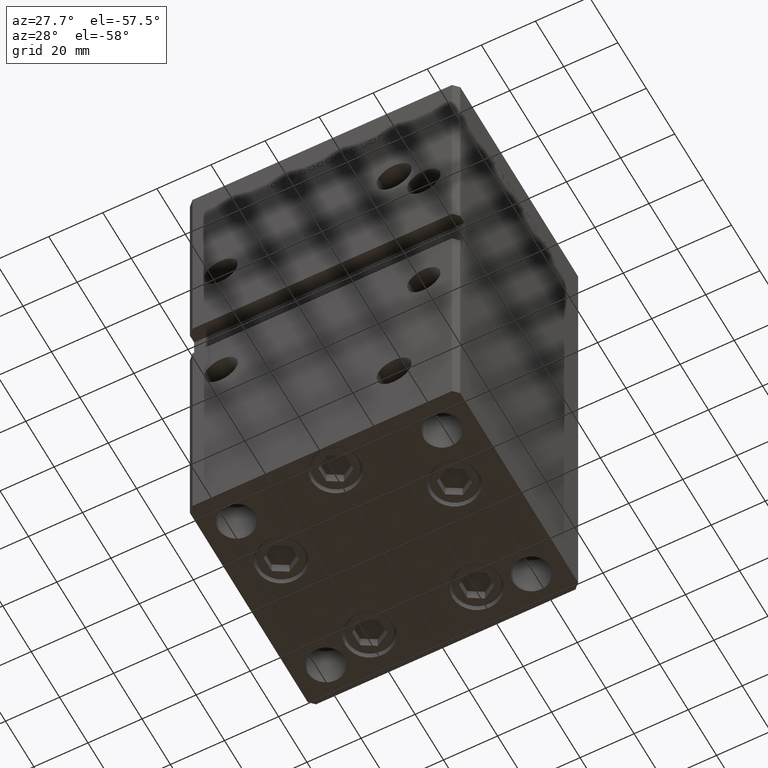
[diagram: clean part render]
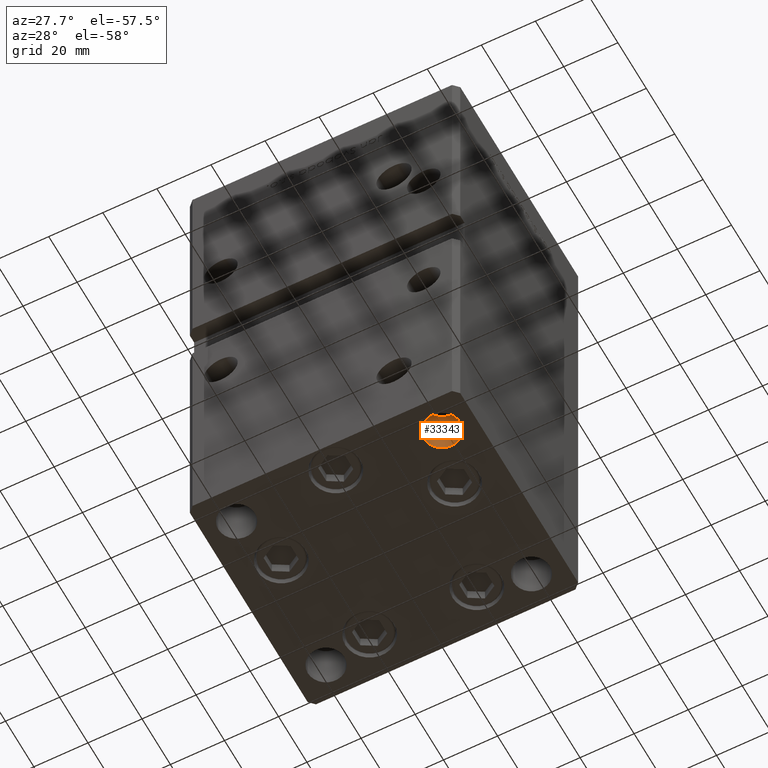
[diagram: same view with one face highlighted and labeled with its STEP entity id]
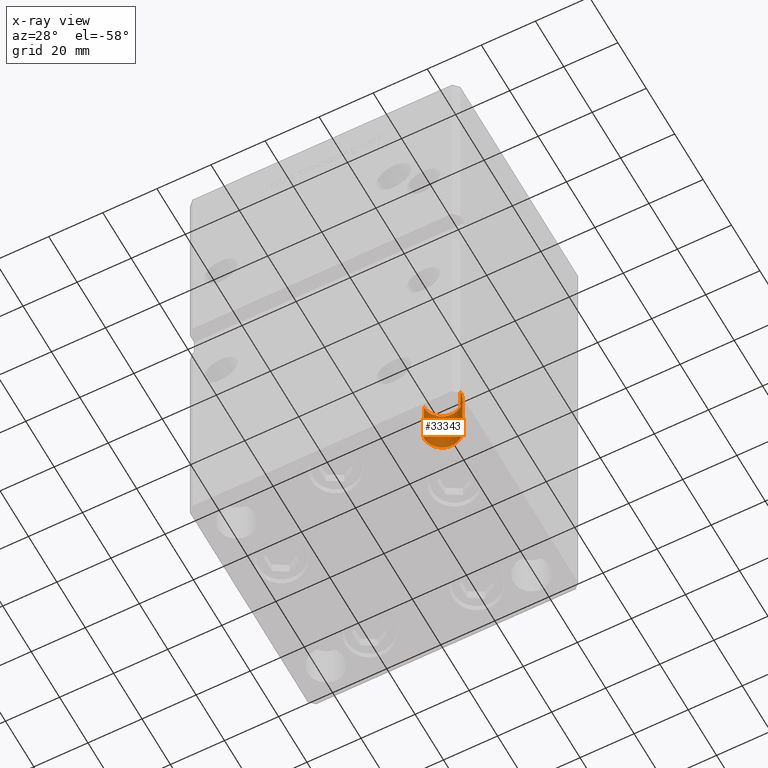
[diagram: x-ray of the same camera — body ghosted, the highlighted face saturated]
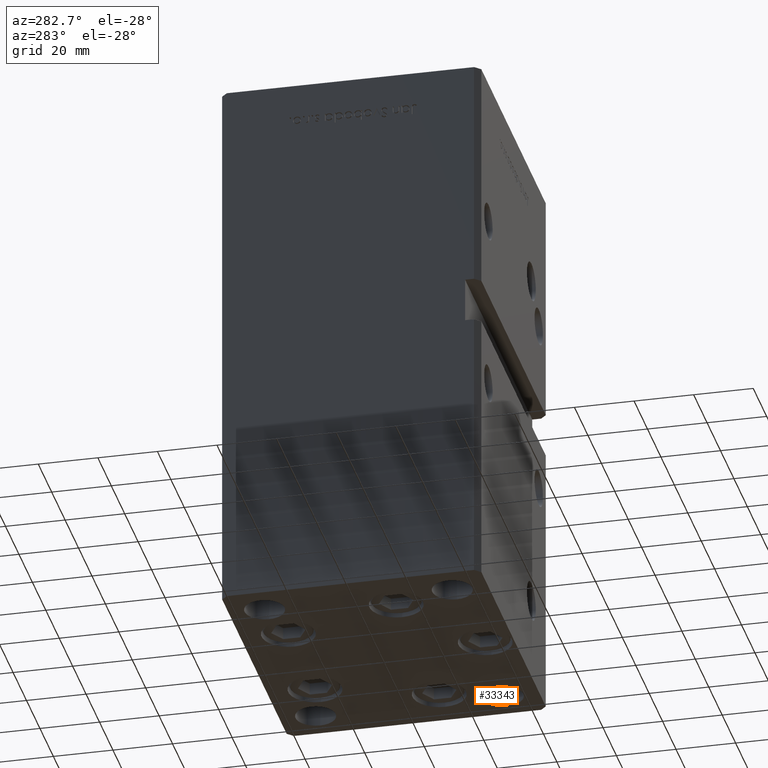
[diagram: same view with one face highlighted and labeled with its STEP entity id]
A machine part, auxiliary view. The second image highlights one B-rep face of the part: STEP entity #33343.
The next image is the same camera in x-ray: the body ghosted, the highlighted face saturated — about 0% of this face is hidden behind the body in this view.
A second angle (auxiliary view) of the same face is appended — the face is thin or edge-on in the first view.
In plain terms, the highlighted cylindrical surface (edge-blend (fillet) strip) has radius 6.75 mm, axis along (0, 0, -1).
Its self-contained STEP definition (entity closure, byte-faithful):
#159 = CIRCLE ( 'NONE', #19932, 6.749999999999999112 ) ;
#222 = CARTESIAN_POINT ( 'NONE',  ( -44.74999999999999289, -31.50000000000000000, -19.00000000000000000 ) ) ;
#1522 = CARTESIAN_POINT ( 'NONE',  ( -37.99999999999999289, -31.50000000000000000, 0.000000000000000000 ) ) ;
#1937 = FACE_OUTER_BOUND ( 'NONE', #5590, .T. ) ;
#4107 = CARTESIAN_POINT ( 'NONE',  ( -31.24999999999999289, -31.50000000000000000, -19.00000000000000000 ) ) ;
#5179 = CARTESIAN_POINT ( 'NONE',  ( -37.99999999999999289, -31.50000000000000000, -19.00000000000000000 ) ) ;
#5556 = LINE ( 'NONE', #38879, #8988 ) ;
#5590 = EDGE_LOOP ( 'NONE', ( #38847, #20684, #32371, #18342 ) ) ;
#8988 = VECTOR ( 'NONE', #21974, 1000.000000000000000 ) ;
#9481 = CYLINDRICAL_SURFACE ( 'NONE', #35097, 6.749999999999999112 ) ;
#10784 = CARTESIAN_POINT ( 'NONE',  ( -44.74999999999999289, -31.50000000000000000, 0.000000000000000000 ) ) ;
#10959 = VERTEX_POINT ( 'NONE', #10784 ) ;
#13103 = CARTESIAN_POINT ( 'NONE',  ( -31.24999999999999289, -31.50000000000000000, 0.000000000000000000 ) ) ;
#13370 = DIRECTION ( 'NONE',  ( 0.000000000000000000, -0.000000000000000000, -1.000000000000000000 ) ) ;
#13848 = VERTEX_POINT ( 'NONE', #39517 ) ;
#15807 = EDGE_CURVE ( 'NONE', #41138, #13848, #49333, .T. ) ;
#16255 = EDGE_CURVE ( 'NONE', #41138, #10959, #5556, .T. ) ;
#18032 = DIRECTION ( 'NONE',  ( -0.000000000000000000, -0.000000000000000000, -1.000000000000000000 ) ) ;
#18342 = ORIENTED_EDGE ( 'NONE', *, *, #48227, .F. ) ;
#18936 = EDGE_CURVE ( 'NONE', #13848, #28550, #38434, .T. ) ;
#19932 = AXIS2_PLACEMENT_3D ( 'NONE', #1522, #13370, #34327 ) ;
#20684 = ORIENTED_EDGE ( 'NONE', *, *, #15807, .T. ) ;
#21602 = DIRECTION ( 'NONE',  ( -0.000000000000000000, -0.000000000000000000, 1.000000000000000000 ) ) ;
#21974 = DIRECTION ( 'NONE',  ( -0.000000000000000000, -0.000000000000000000, 1.000000000000000000 ) ) ;
#22063 = DIRECTION ( 'NONE',  ( -0.000000000000000000, -0.000000000000000000, 1.000000000000000000 ) ) ;
#28550 = VERTEX_POINT ( 'NONE', #13103 ) ;
#32371 = ORIENTED_EDGE ( 'NONE', *, *, #18936, .T. ) ;
#33343 = ADVANCED_FACE ( 'NONE', ( #1937 ), #9481, .F. ) ;
#34327 = DIRECTION ( 'NONE',  ( 1.000000000000000000, 0.000000000000000000, 0.000000000000000000 ) ) ;
#34477 = DIRECTION ( 'NONE',  ( 1.000000000000000000, 0.000000000000000000, 0.000000000000000000 ) ) ;
#35097 = AXIS2_PLACEMENT_3D ( 'NONE', #5179, #21602, #34477 ) ;
#38434 = LINE ( 'NONE', #4107, #48407 ) ;
#38847 = ORIENTED_EDGE ( 'NONE', *, *, #16255, .F. ) ;
#38879 = CARTESIAN_POINT ( 'NONE',  ( -44.74999999999999289, -31.50000000000000000, -19.00000000000000000 ) ) ;
#39013 = CARTESIAN_POINT ( 'NONE',  ( -37.99999999999999289, -31.50000000000000000, -19.00000000000000000 ) ) ;
#39517 = CARTESIAN_POINT ( 'NONE',  ( -31.24999999999999289, -31.50000000000000000, -19.00000000000000000 ) ) ;
#41138 = VERTEX_POINT ( 'NONE', #222 ) ;
#45029 = AXIS2_PLACEMENT_3D ( 'NONE', #39013, #18032, #47060 ) ;
#47060 = DIRECTION ( 'NONE',  ( -1.000000000000000000, 0.000000000000000000, 0.000000000000000000 ) ) ;
#48227 = EDGE_CURVE ( 'NONE', #10959, #28550, #159, .T. ) ;
#48407 = VECTOR ( 'NONE', #22063, 1000.000000000000000 ) ;
#49333 = CIRCLE ( 'NONE', #45029, 6.749999999999999112 ) ;